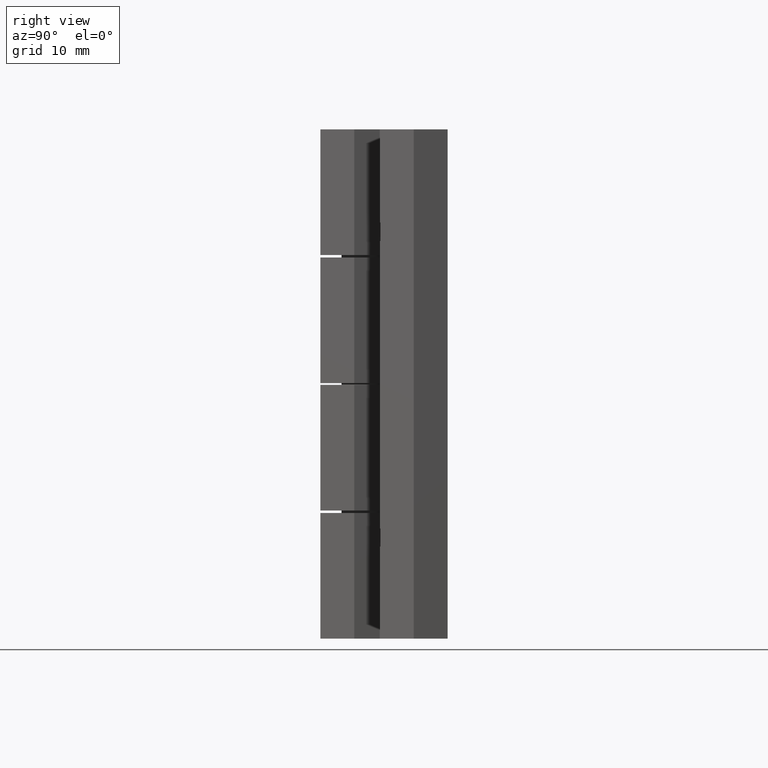
[diagram: clean part render]
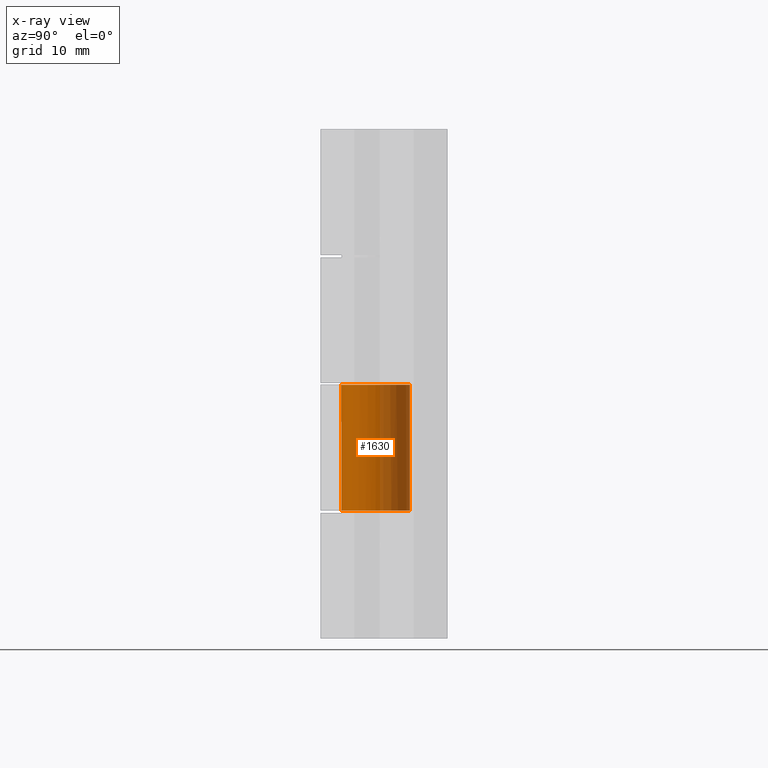
[diagram: x-ray — body ghosted, one internal face saturated and labeled with its STEP entity id]
A machine part, right view, then the same camera in x-ray: the body is ghosted and one INTERNAL B-rep face — a face not visible from any outside direction — is saturated and labeled: STEP entity #1630.
In plain terms, the highlighted face is a freeform B-spline surface patch.
Its self-contained STEP definition (entity closure, byte-faithful):
#1465=CARTESIAN_POINT('',(-0.502717007444034,-4.018678356862122,15.100000717211501));
#1466=VERTEX_POINT('',#1465);
#1480=CARTESIAN_POINT('',(0.035343895513806,4.049845980765906,15.100000717211501));
#1481=VERTEX_POINT('',#1480);
#1497=CARTESIAN_POINT('',(0.035343895531165,4.049845980765754,29.900001420173801));
#1498=VERTEX_POINT('',#1497);
#1499=CARTESIAN_POINT('',(0.035343895531165,4.049845980765754,29.900001420173801));
#1500=CARTESIAN_POINT('',(0.035343895513806,4.049845980765906,15.100000717211501));
#1501=QUASI_UNIFORM_CURVE('',1,(#1499,#1500),.UNSPECIFIED.,.F.,.U.);
#1502=EDGE_CURVE('',#1498,#1481,#1501,.T.);
#1521=CARTESIAN_POINT('',(-0.502711119398632,-4.018679093421129,29.900001420173801));
#1522=VERTEX_POINT('',#1521);
#1536=CARTESIAN_POINT('',(-0.502711119398632,-4.018679093421129,29.900001420173801));
#1537=CARTESIAN_POINT('',(-0.502717007444034,-4.018678356862122,15.100000717211501));
#1538=QUASI_UNIFORM_CURVE('',1,(#1536,#1537),.UNSPECIFIED.,.F.,.U.);
#1539=EDGE_CURVE('',#1522,#1466,#1538,.T.);
#1544=CARTESIAN_POINT('',(0.035343895370588,4.049845980767156,30.270001437747862));
#1545=CARTESIAN_POINT('',(4.085189876137800,4.014503510320064,30.270001437747865));
#1546=CARTESIAN_POINT('',(4.049847405690709,-0.035342470447148,30.270001437747862));
#1547=CARTESIAN_POINT('',(4.014504935243617,-4.085188451214361,30.270001437747865));
#1548=CARTESIAN_POINT('',(-0.035341045523595,-4.049845980767270,30.270001437747862));
#1549=CARTESIAN_POINT('',(-0.269931731678241,-4.047798738864255,30.270001437747862));
#1550=CARTESIAN_POINT('',(-0.502717007377651,-4.018678356870425,30.270001437747858));
#1551=CARTESIAN_POINT('',(0.035343895370588,4.049845980767156,14.720750699198090));
#1552=CARTESIAN_POINT('',(4.085189876137800,4.014503510320064,14.720750699198089));
#1553=CARTESIAN_POINT('',(4.049847405690709,-0.035342470447148,14.720750699198090));
#1554=CARTESIAN_POINT('',(4.014504935243617,-4.085188451214361,14.720750699198089));
#1555=CARTESIAN_POINT('',(-0.035341045523595,-4.049845980767270,14.720750699198090));
#1556=CARTESIAN_POINT('',(-0.269931731678241,-4.047798738864255,14.720750699198090));
#1557=CARTESIAN_POINT('',(-0.502717007377651,-4.018678356870425,14.720750699198089));
#1565=(BOUNDED_SURFACE()B_SPLINE_SURFACE(2,1,((#1544,#1551),(#1545,#1552),(#1546,#1553),(#1547,#1554),(#1548,#1555),(#1549,#1556),(#1550,#1557)),.UNSPECIFIED.,.F.,.F.,.U.)B_SPLINE_SURFACE_WITH_KNOTS((3,2,2,3),(2,2),(0.0,6.710260029164318,13.420520058328639,13.957340860661780),(0.0,15.549250738549780),.UNSPECIFIED.)GEOMETRIC_REPRESENTATION_ITEM()RATIONAL_B_SPLINE_SURFACE(((1.0,1.0),(0.707106781186548,0.707106781186548),(1.0,1.0),(0.707106781186548,0.707106781186548),(1.0,1.0),(0.976568542494924,0.976568542494924),(0.956886118190660,0.956886118190660)))REPRESENTATION_ITEM('')SURFACE());
#1566=CARTESIAN_POINT('',(4.050001617288142,-5.684342E-014,15.100000717211501));
#1567=VERTEX_POINT('',#1566);
#1568=CARTESIAN_POINT('',(-0.502717007444034,-4.018678356862122,15.100000717211499));
#1569=CARTESIAN_POINT('',(-0.252333543639581,-4.050000192364703,15.100000717211506));
#1570=CARTESIAN_POINT('',(0.000001424923497,-4.050000192364702,15.100000717211501));
#1571=CARTESIAN_POINT('',(4.050001617288141,-4.050000192364703,15.100000717211497));
#1572=CARTESIAN_POINT('',(4.050001617288142,-5.684342E-014,15.100000717211501));
#1580=(BOUNDED_CURVE()B_SPLINE_CURVE(2,(#1568,#1569,#1570,#1571,#1572),.UNSPECIFIED.,.F.,.U.)B_SPLINE_CURVE_WITH_KNOTS((3,2,3),(0.228526071023727,0.250000000000000,0.500000000000000),.UNSPECIFIED.)CURVE()GEOMETRIC_REPRESENTATION_ITEM()RATIONAL_B_SPLINE_CURVE((0.954005430263906,0.974841727286272,1.0,0.707106781186547,1.0))REPRESENTATION_ITEM(''));
#1581=EDGE_CURVE('',#1466,#1567,#1580,.T.);
#1582=ORIENTED_EDGE('',*,*,#1581,.F.);
#1583=ORIENTED_EDGE('',*,*,#1539,.F.);
#1584=CARTESIAN_POINT('',(4.050001617288142,-5.684342E-014,29.900001420173801));
#1585=VERTEX_POINT('',#1584);
#1586=CARTESIAN_POINT('',(4.050001617288142,-5.684342E-014,29.900001420173801));
#1587=CARTESIAN_POINT('',(4.050001617288141,-4.050000192364703,29.900001420173794));
#1588=CARTESIAN_POINT('',(0.000001424923497,-4.050000192364702,29.900001420173801));
#1589=CARTESIAN_POINT('',(-0.252330565120594,-4.050000192364702,29.900001420173801));
#1590=CARTESIAN_POINT('',(-0.502711119398632,-4.018679093421129,29.900001420173798));
#1598=(BOUNDED_CURVE()B_SPLINE_CURVE(2,(#1586,#1587,#1588,#1589,#1590),.UNSPECIFIED.,.F.,.U.)B_SPLINE_CURVE_WITH_KNOTS((3,2,3),(0.0,0.250000000000000,0.271473681878583),.UNSPECIFIED.)CURVE()GEOMETRIC_REPRESENTATION_ITEM()RATIONAL_B_SPLINE_CURVE((1.0,0.707106781186547,1.0,0.974842016779223,0.954005909785564))REPRESENTATION_ITEM(''));
#1599=EDGE_CURVE('',#1585,#1522,#1598,.T.);
#1600=ORIENTED_EDGE('',*,*,#1599,.F.);
#1601=CARTESIAN_POINT('',(0.035343895531165,4.049845980765754,29.900001420173805));
#1602=CARTESIAN_POINT('',(4.050001617288142,4.014810593284446,29.900001420173805));
#1603=CARTESIAN_POINT('',(4.050001617288142,-5.684342E-014,29.900001420173801));
#1611=(BOUNDED_CURVE()B_SPLINE_CURVE(2,(#1601,#1602,#1603),.UNSPECIFIED.,.F.,.U.)B_SPLINE_CURVE_WITH_KNOTS((3,3),(0.751539894348955,1.0),.UNSPECIFIED.)CURVE()GEOMETRIC_REPRESENTATION_ITEM()RATIONAL_B_SPLINE_CURVE((0.996414028068080,0.708910879636540,1.0))REPRESENTATION_ITEM(''));
#1612=EDGE_CURVE('',#1498,#1585,#1611,.T.);
#1613=ORIENTED_EDGE('',*,*,#1612,.F.);
#1614=ORIENTED_EDGE('',*,*,#1502,.T.);
#1615=CARTESIAN_POINT('',(4.050001617288142,-5.684342E-014,15.100000717211501));
#1616=CARTESIAN_POINT('',(4.050001617288142,4.014810593318867,15.100000717211508));
#1617=CARTESIAN_POINT('',(0.035343895513806,4.049845980765906,15.100000717211508));
#1625=(BOUNDED_CURVE()B_SPLINE_CURVE(2,(#1615,#1616,#1617),.UNSPECIFIED.,.F.,.U.)B_SPLINE_CURVE_WITH_KNOTS((3,3),(0.500000000000000,0.748460105652555),.UNSPECIFIED.)CURVE()GEOMETRIC_REPRESENTATION_ITEM()RATIONAL_B_SPLINE_CURVE((1.0,0.708910879634771,0.996414028071574))REPRESENTATION_ITEM(''));
#1626=EDGE_CURVE('',#1567,#1481,#1625,.T.);
#1627=ORIENTED_EDGE('',*,*,#1626,.F.);
#1628=EDGE_LOOP('',(#1582,#1583,#1600,#1613,#1614,#1627));
#1629=FACE_OUTER_BOUND('',#1628,.T.);
#1630=ADVANCED_FACE('',(#1629),#1565,.F.);